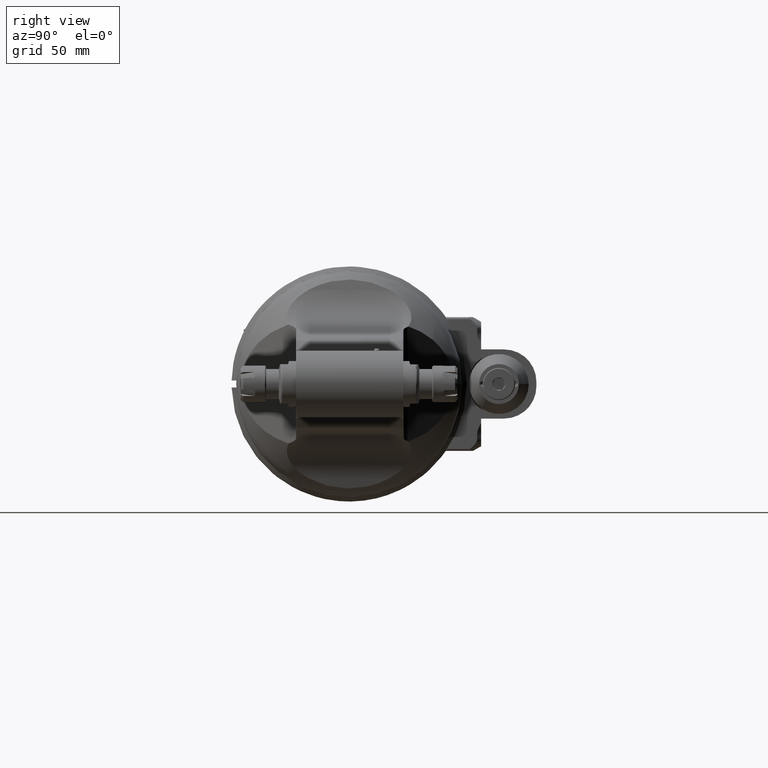
[diagram: clean part render]
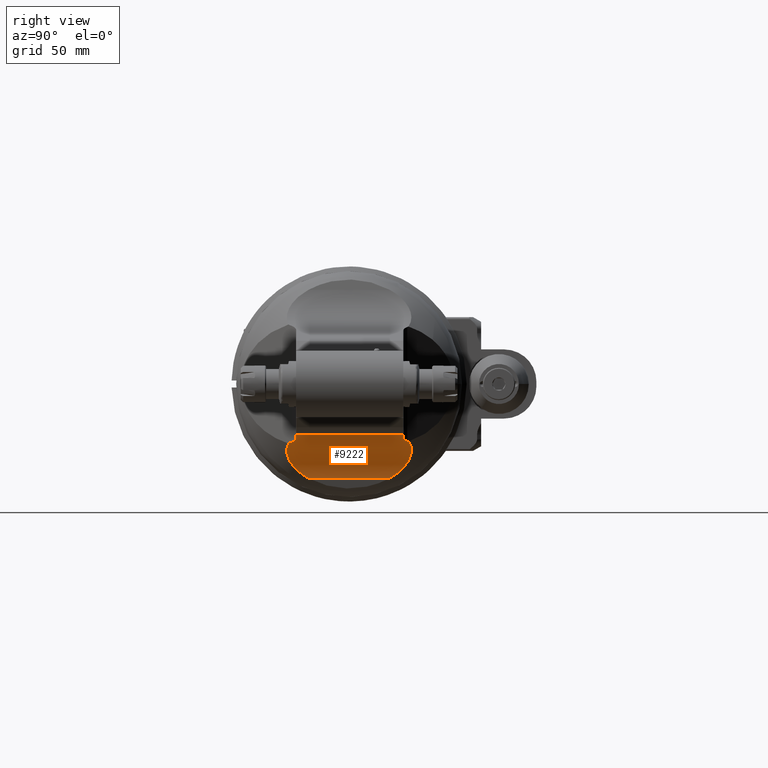
[diagram: same view with one face highlighted and labeled with its STEP entity id]
A machine part, right view. The second image highlights one B-rep face of the part: STEP entity #9222.
In plain terms, the highlighted cylindrical surface (partial cylindrical patch) has radius 26 mm, axis along (-0, -1, -0).
Its self-contained STEP definition (entity closure, byte-faithful):
#21=ELLIPSE('',#10093,78.9687900197953,46.6795418620351);
#996=FACE_OUTER_BOUND('',#1600,.T.);
#1600=EDGE_LOOP('',(#7739,#7740,#7741,#7742,#7743,#7744,#7745,#7746,#7747,
#7748));
#2113=CIRCLE('',#10079,26.);
#2119=CIRCLE('',#10087,26.);
#2121=CIRCLE('',#10094,61.1215133783104);
#2395=B_SPLINE_CURVE_WITH_KNOTS('',3,(#45954,#45955,#45956,#45957,#45958,
#45959,#45960,#45961),.UNSPECIFIED.,.F.,.F.,(4,2,2,4),(-1.01926799667053,
-0.956010714104507,-0.787581854621471,-0.619152995138436),.UNSPECIFIED.);
#2396=B_SPLINE_CURVE_WITH_KNOTS('',3,(#45965,#45966,#45967,#45968,#45969,
#45970,#45971,#45972,#45973,#45974,#45975,#45976,#45977,#45978,#45979,#45980),
 .UNSPECIFIED.,.F.,.F.,(4,2,2,2,2,2,2,4),(-11.3679576426964,-11.1087200709386,
-10.8090962085518,-10.509472346165,-10.1518591663311,-9.79424598649715,
-9.20006866240719,-9.17254142138074),.UNSPECIFIED.);
#2397=B_SPLINE_CURVE_WITH_KNOTS('',3,(#45984,#45985,#45986,#45987,#45988,
#45989,#45990,#45991,#45992,#45993,#45994,#45995,#45996,#45997,#45998,#45999),
 .UNSPECIFIED.,.F.,.F.,(4,2,2,2,2,2,2,4),(-5.66253195905697,-5.63500471786745,
-5.04082739377749,-4.68321421394355,-4.32560103410961,-4.02597717172281,
-3.72635330933602,-3.29785451749121),.UNSPECIFIED.);
#2398=B_SPLINE_CURVE_WITH_KNOTS('',3,(#46002,#46003,#46004,#46005,#46006,
#46007,#46008,#46009),.UNSPECIFIED.,.F.,.F.,(4,2,2,4),(-0.634143604519554,
-0.468183361072117,-0.302223117624681,-0.238269728367189),.UNSPECIFIED.);
#2876=LINE('',#45951,#3520);
#2877=LINE('',#45982,#3521);
#3520=VECTOR('',#12130,46.5);
#3521=VECTOR('',#12135,35.24839661165);
#4303=VERTEX_POINT('',#45881);
#4304=VERTEX_POINT('',#45883);
#4328=VERTEX_POINT('',#45935);
#4329=VERTEX_POINT('',#45937);
#4333=VERTEX_POINT('',#45953);
#4334=VERTEX_POINT('',#45962);
#4335=VERTEX_POINT('',#45964);
#4336=VERTEX_POINT('',#45981);
#4337=VERTEX_POINT('',#45983);
#4338=VERTEX_POINT('',#46000);
#5496=EDGE_CURVE('',#4303,#4304,#2113,.T.);
#5523=EDGE_CURVE('',#4328,#4329,#2119,.T.);
#5530=EDGE_CURVE('',#4303,#4329,#2876,.T.);
#5531=EDGE_CURVE('',#4333,#4328,#2395,.T.);
#5532=EDGE_CURVE('',#4333,#4334,#21,.T.);
#5533=EDGE_CURVE('',#4334,#4335,#2396,.T.);
#5534=EDGE_CURVE('',#4335,#4336,#2877,.T.);
#5535=EDGE_CURVE('',#4336,#4337,#2397,.T.);
#5536=EDGE_CURVE('',#4337,#4338,#2121,.T.);
#5537=EDGE_CURVE('',#4304,#4338,#2398,.T.);
#7739=ORIENTED_EDGE('',*,*,#5530,.T.);
#7740=ORIENTED_EDGE('',*,*,#5523,.F.);
#7741=ORIENTED_EDGE('',*,*,#5531,.F.);
#7742=ORIENTED_EDGE('',*,*,#5532,.T.);
#7743=ORIENTED_EDGE('',*,*,#5533,.T.);
#7744=ORIENTED_EDGE('',*,*,#5534,.T.);
#7745=ORIENTED_EDGE('',*,*,#5535,.T.);
#7746=ORIENTED_EDGE('',*,*,#5536,.T.);
#7747=ORIENTED_EDGE('',*,*,#5537,.F.);
#7748=ORIENTED_EDGE('',*,*,#5496,.F.);
#8808=CYLINDRICAL_SURFACE('',#10092,26.);
#9222=ADVANCED_FACE('',(#996),#8808,.F.);
#10079=AXIS2_PLACEMENT_3D('',#45884,#12078,#12079);
#10087=AXIS2_PLACEMENT_3D('',#45938,#12115,#12116);
#10092=AXIS2_PLACEMENT_3D('',#45952,#12131,#12132);
#10093=AXIS2_PLACEMENT_3D('',#45963,#12133,#12134);
#10094=AXIS2_PLACEMENT_3D('',#46001,#12136,#12137);
#12078=DIRECTION('center_axis',(0.,0.,-1.));
#12079=DIRECTION('ref_axis',(-0.984807753012142,0.173648177667307,0.));
#12115=DIRECTION('center_axis',(0.,0.,1.));
#12116=DIRECTION('ref_axis',(-0.925915786859665,0.377730003632286,0.));
#12130=DIRECTION('',(0.,0.,-1.));
#12131=DIRECTION('center_axis',(0.,0.,-1.));
#12132=DIRECTION('ref_axis',(0.,-1.,0.));
#12133=DIRECTION('center_axis',(0.000171261675066235,-0.81918684404952,
-0.573526708362938));
#12134=DIRECTION('ref_axis',(-0.33605297314521,0.540125025344374,-0.771578483523876));
#12135=DIRECTION('',(2.310507871532E-11,6.191376540209E-12,1.));
#12136=DIRECTION('center_axis',(1.79250514574496E-5,-0.819155309111723,
0.573571773392634));
#12137=DIRECTION('ref_axis',(-0.954853340706093,0.170381302530685,0.243362506336456));
#45881=CARTESIAN_POINT('',(21.97603174258,72.96170787239,23.5));
#45883=CARTESIAN_POINT('',(23.23331252454,77.56762780927,23.5));
#45884=CARTESIAN_POINT('Origin',(47.5810333209,68.44685525304,23.5));
#45935=CARTESIAN_POINT('',(23.50722286254,78.26783534749,-23.));
#45937=CARTESIAN_POINT('',(21.97603174258,72.96170787239,-23.));
#45938=CARTESIAN_POINT('Origin',(47.5810333209,68.44685525304,-23.));
#45951=CARTESIAN_POINT('',(21.97603174258,72.96170787239,23.5));
#45952=CARTESIAN_POINT('Origin',(47.5810333209,68.44685525304,0.));
#45953=CARTESIAN_POINT('',(25.12099811461,81.54444352464,-24.7056942546));
#45954=CARTESIAN_POINT('Ctrl Pts',(25.1209981146124,81.5444435246388,-24.7056942545999));
#45955=CARTESIAN_POINT('Ctrl Pts',(25.0511457600953,81.4246591560083,-24.5346244473009));
#45956=CARTESIAN_POINT('Ctrl Pts',(24.9763026179841,81.2940505418751,-24.3768949906602));
#45957=CARTESIAN_POINT('Ctrl Pts',(24.6973038563181,80.7962291527848,-23.8565480079489));
#45958=CARTESIAN_POINT('Ctrl Pts',(24.4537188362212,80.3396774599655,-23.5351211073212));
#45959=CARTESIAN_POINT('Ctrl Pts',(23.9643738640769,79.3356243021307,-23.1067054262353));
#45960=CARTESIAN_POINT('Ctrl Pts',(23.7192916415636,78.7876718140078,-23.));
#45961=CARTESIAN_POINT('Ctrl Pts',(23.5072228625489,78.26783534748,-23.));
#45962=CARTESIAN_POINT('',(25.81853261668,82.67336442075,-26.31796038215));
#45963=CARTESIAN_POINT('Origin',(72.7673858941174,52.8876447770226,16.2399708458701));
#45964=CARTESIAN_POINT('',(40.85173814823,93.56092673656,-17.62419830655));
#45965=CARTESIAN_POINT('Ctrl Pts',(25.8185326166821,82.6733644207492,-26.3179603821482));
#45966=CARTESIAN_POINT('Ctrl Pts',(26.2980394523376,83.4068730928778,-26.5670459568276));
#45967=CARTESIAN_POINT('Ctrl Pts',(26.8275770681717,84.1347737707199,-26.7602403925626));
#45968=CARTESIAN_POINT('Ctrl Pts',(28.055709602424,85.6472281904293,-27.0206715689457));
#45969=CARTESIAN_POINT('Ctrl Pts',(28.769610398774,86.4245011192932,-27.0631655307252));
#45970=CARTESIAN_POINT('Ctrl Pts',(30.2539541892921,87.8591635096828,-26.928828024518));
#45971=CARTESIAN_POINT('Ctrl Pts',(31.0242980645363,88.5166108749215,-26.7515201873075));
#45972=CARTESIAN_POINT('Ctrl Pts',(32.6960679135348,89.7951384800515,-26.1431500897146));
#45973=CARTESIAN_POINT('Ctrl Pts',(33.6912935538658,90.453421209614,-25.6262824137681));
#45974=CARTESIAN_POINT('Ctrl Pts',(35.6027586369876,91.5495547345751,-24.2857621006101));
#45975=CARTESIAN_POINT('Ctrl Pts',(36.5181412902263,91.9912206823335,-23.4640109036862));
#45976=CARTESIAN_POINT('Ctrl Pts',(38.5992416820879,92.8871518613675,-21.2432134325854));
#45977=CARTESIAN_POINT('Ctrl Pts',(39.7397040921012,93.2569369743967,-19.6305258381362));
#45978=CARTESIAN_POINT('Ctrl Pts',(40.7622445582471,93.5368198444954,-17.7882881650128));
#45979=CARTESIAN_POINT('Ctrl Pts',(40.8071676968061,93.5489841200892,-17.7063995071778));
#45980=CARTESIAN_POINT('Ctrl Pts',(40.8517381482256,93.5609267365534,-17.6241983065466));
#45981=CARTESIAN_POINT('',(40.85173814904,93.56092673678,17.6241983051));
#45982=CARTESIAN_POINT('',(40.85173814823,93.56092673656,-17.62419830655));
#45983=CARTESIAN_POINT('',(24.94381098088,81.23576313169,25.76485296668));
#45984=CARTESIAN_POINT('Ctrl Pts',(40.8517381490177,93.5609267367656,17.6241983050858));
#45985=CARTESIAN_POINT('Ctrl Pts',(40.8071676973384,93.5489841202334,17.7063995062076));
#45986=CARTESIAN_POINT('Ctrl Pts',(40.7622445585152,93.5368198445688,17.7882881645296));
#45987=CARTESIAN_POINT('Ctrl Pts',(39.7397040921012,93.2569369743966,19.6305258381362));
#45988=CARTESIAN_POINT('Ctrl Pts',(38.5992416820879,92.8871518613675,21.2432134325854));
#45989=CARTESIAN_POINT('Ctrl Pts',(36.5181412902263,91.9912206823335,23.4640109036862));
#45990=CARTESIAN_POINT('Ctrl Pts',(35.6027586369876,91.5495547345751,24.2857621006101));
#45991=CARTESIAN_POINT('Ctrl Pts',(33.6912935538658,90.453421209614,25.6262824137681));
#45992=CARTESIAN_POINT('Ctrl Pts',(32.6960679135348,89.7951384800515,26.1431500897146));
#45993=CARTESIAN_POINT('Ctrl Pts',(31.0242980645363,88.5166108749215,26.7515201873075));
#45994=CARTESIAN_POINT('Ctrl Pts',(30.2539541892921,87.8591635096828,26.928828024518));
#45995=CARTESIAN_POINT('Ctrl Pts',(28.769610398774,86.4245011192932,27.0631655307252));
#45996=CARTESIAN_POINT('Ctrl Pts',(28.055709602424,85.6472281904293,27.0206715689457));
#45997=CARTESIAN_POINT('Ctrl Pts',(26.4556150781762,83.6766997925111,26.6813641345671));
#45998=CARTESIAN_POINT('Ctrl Pts',(25.6262254767731,82.4436824331751,26.2814142669372));
#45999=CARTESIAN_POINT('Ctrl Pts',(24.943810980882,81.2357631316897,25.764852966678));
#46000=CARTESIAN_POINT('',(24.72704130744,80.84423598649,25.20569425468));
#46001=CARTESIAN_POINT('Origin',(83.0891225457575,70.4302729244372,10.3310095678541));
#46002=CARTESIAN_POINT('Ctrl Pts',(23.2333125245396,77.56762780927,23.5));
#46003=CARTESIAN_POINT('Ctrl Pts',(23.427374785291,78.0856731516744,23.5));
#46004=CARTESIAN_POINT('Ctrl Pts',(23.6527927473859,78.6321891338969,23.6060548904747));
#46005=CARTESIAN_POINT('Ctrl Pts',(24.1043156376075,79.6336979733256,24.0319381493228));
#46006=CARTESIAN_POINT('Ctrl Pts',(24.3297240020591,80.0891082677555,24.3515229478473));
#46007=CARTESIAN_POINT('Ctrl Pts',(24.5898596612128,80.5889514976385,24.8709674705775));
#46008=CARTESIAN_POINT('Ctrl Pts',(24.6608886739893,80.7222866981877,25.0315326216657));
#46009=CARTESIAN_POINT('Ctrl Pts',(24.7270413074665,80.8442359864819,25.2056942546757));